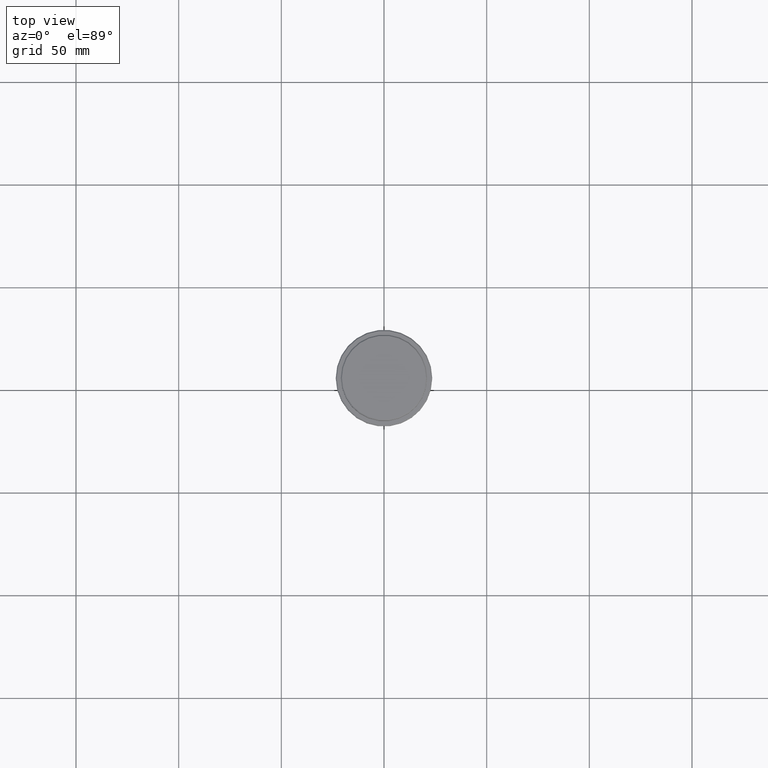
[diagram: clean part render]
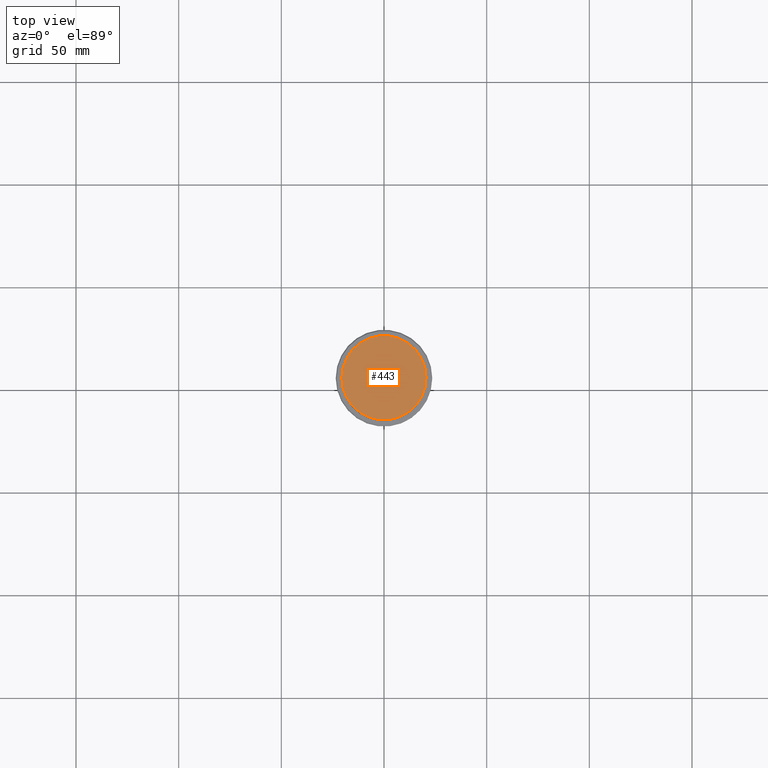
[diagram: same view with one face highlighted and labeled with its STEP entity id]
A machine part, top view. The second image highlights one B-rep face of the part: STEP entity #443.
In plain terms, the highlighted planar face has unit normal (0, -0, 1).
Its self-contained STEP definition (entity closure, byte-faithful):
#34 = CIRCLE ( 'NONE', #1152, 20.49999999999996447 ) ;
#122 = DIRECTION ( 'NONE',  ( -0.000000000000000000, -0.000000000000000000, 1.000000000000000000 ) ) ;
#138 = DIRECTION ( 'NONE',  ( -0.000000000000000000, -0.000000000000000000, 1.000000000000000000 ) ) ;
#177 = CIRCLE ( 'NONE', #1381, 20.49999999999996447 ) ;
#261 = DIRECTION ( 'NONE',  ( 0.000000000000000000, -0.000000000000000000, 1.000000000000000000 ) ) ;
#400 = ORIENTED_EDGE ( 'NONE', *, *, #1385, .T. ) ;
#443 = ADVANCED_FACE ( 'NONE', ( #915 ), #1144, .T. ) ;
#517 = AXIS2_PLACEMENT_3D ( 'NONE', #802, #261, #692 ) ;
#578 = DIRECTION ( 'NONE',  ( 1.000000000000000000, 0.000000000000000000, 0.000000000000000000 ) ) ;
#641 = CARTESIAN_POINT ( 'NONE',  ( 20.49999999999996447, 2.541142108230755507E-15, 0.000000000000000000 ) ) ;
#692 = DIRECTION ( 'NONE',  ( 1.000000000000000000, 0.000000000000000000, 0.000000000000000000 ) ) ;
#802 = CARTESIAN_POINT ( 'NONE',  ( 0.000000000000000000, 0.000000000000000000, 0.000000000000000000 ) ) ;
#838 = CARTESIAN_POINT ( 'NONE',  ( 0.000000000000000000, 0.000000000000000000, 0.000000000000000000 ) ) ;
#915 = FACE_OUTER_BOUND ( 'NONE', #1318, .T. ) ;
#1004 = ORIENTED_EDGE ( 'NONE', *, *, #1129, .T. ) ;
#1060 = CARTESIAN_POINT ( 'NONE',  ( -20.49999999999996447, 0.000000000000000000, 0.000000000000000000 ) ) ;
#1069 = VERTEX_POINT ( 'NONE', #641 ) ;
#1108 = CARTESIAN_POINT ( 'NONE',  ( 0.000000000000000000, 0.000000000000000000, 0.000000000000000000 ) ) ;
#1129 = EDGE_CURVE ( 'NONE', #1317, #1069, #177, .T. ) ;
#1144 = PLANE ( 'NONE',  #517 ) ;
#1152 = AXIS2_PLACEMENT_3D ( 'NONE', #838, #138, #578 ) ;
#1317 = VERTEX_POINT ( 'NONE', #1060 ) ;
#1318 = EDGE_LOOP ( 'NONE', ( #1004, #400 ) ) ;
#1335 = DIRECTION ( 'NONE',  ( 1.000000000000000000, 0.000000000000000000, 0.000000000000000000 ) ) ;
#1381 = AXIS2_PLACEMENT_3D ( 'NONE', #1108, #122, #1335 ) ;
#1385 = EDGE_CURVE ( 'NONE', #1069, #1317, #34, .T. ) ;